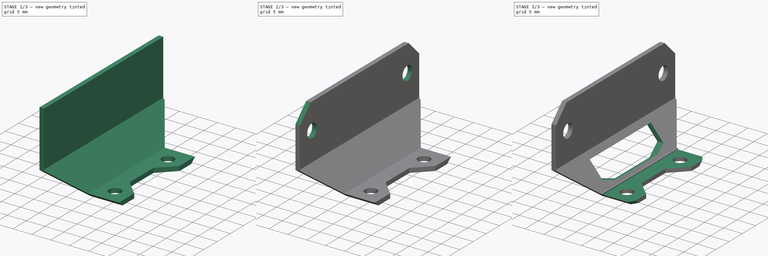
[diagram: build sequence overview — one tinted view per stage of 3, left to right]
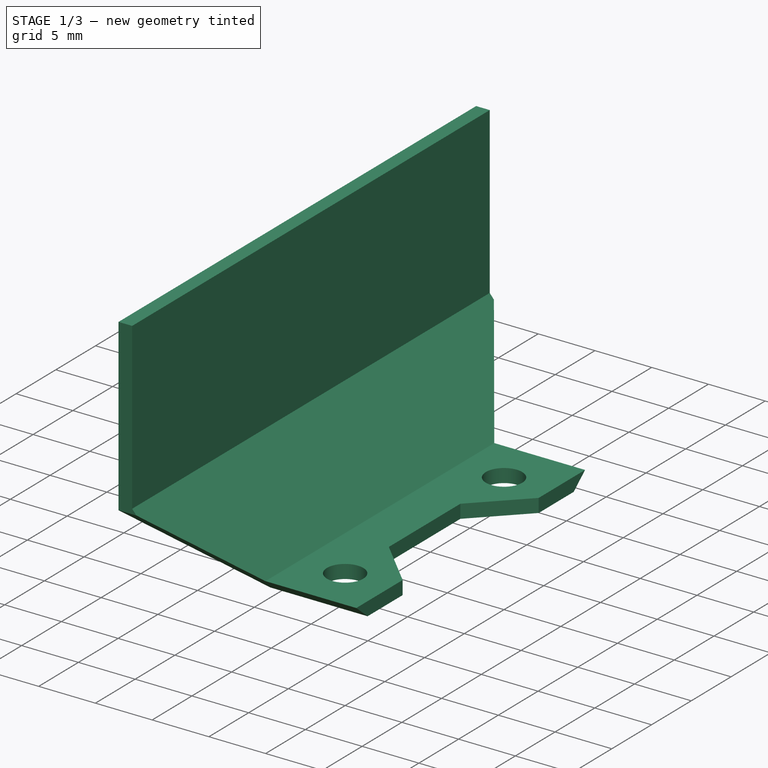
[diagram: stage 1 of 3 — iso view after this stage's code; geometry added in this stage tinted green]
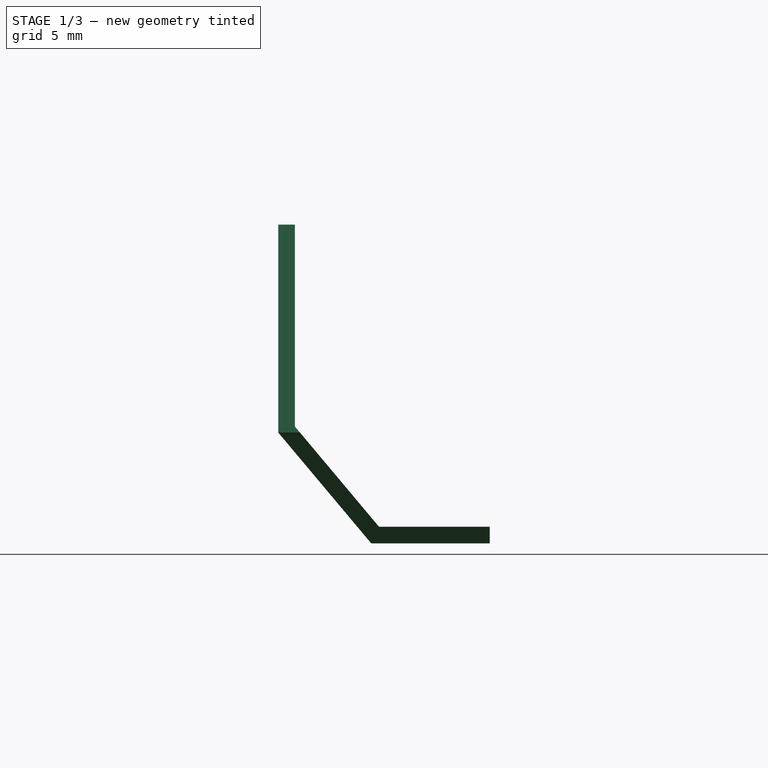
[diagram: stage 1 of 3 — front view after this stage's code; geometry added in this stage tinted green]
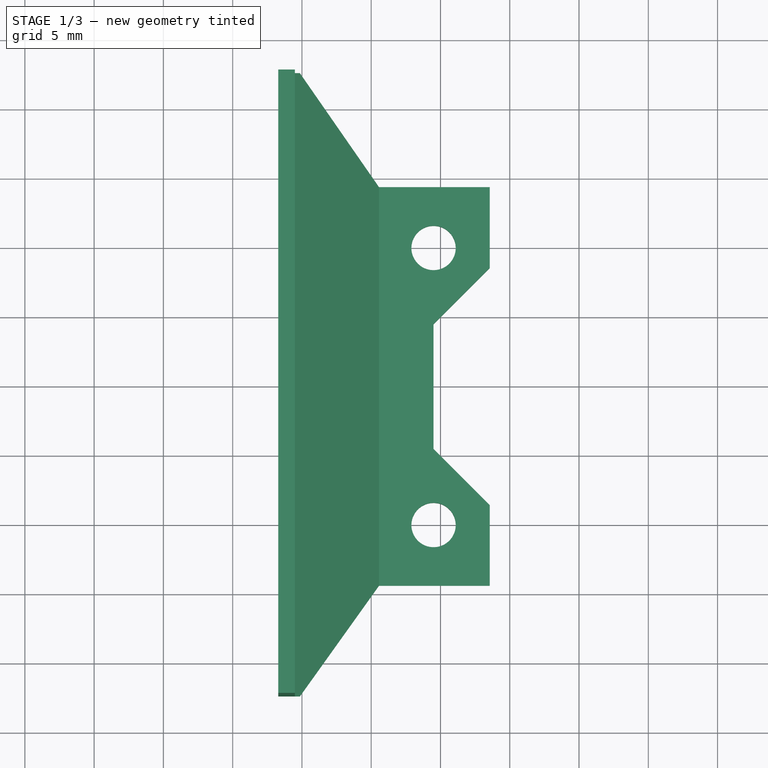
[diagram: stage 1 of 3 — top view after this stage's code; geometry added in this stage tinted green]
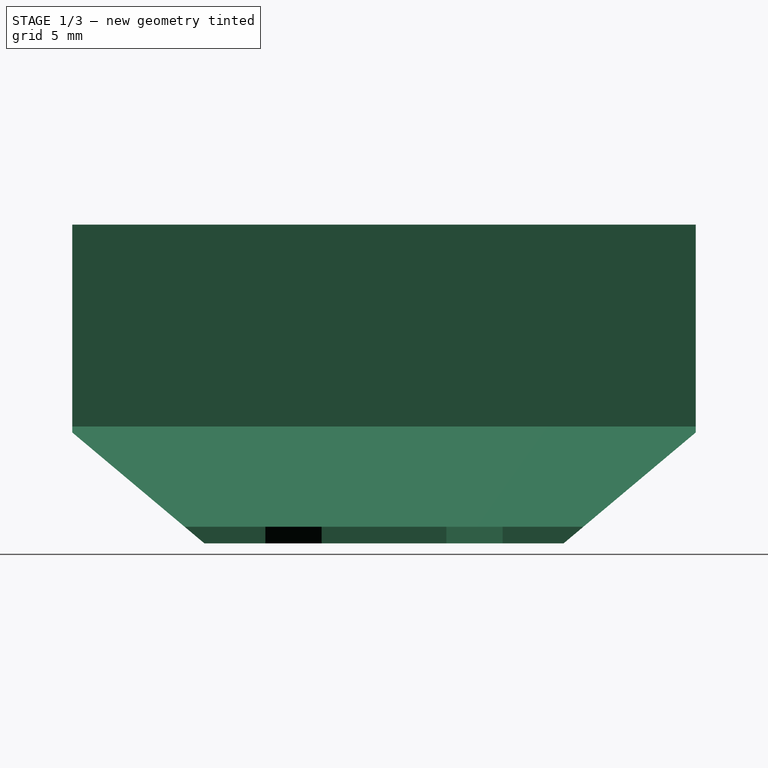
[diagram: stage 1 of 3 — right view after this stage's code; geometry added in this stage tinted green]
FCSTD DOCUMENT  (FreeCAD 0.18R4 (GitTag))
Label: soporte_SHARP_2
License: All rights reserved
LicenseURL: http://en.wikipedia.org/wiki/All_rights_reserved
objects: Sketcher::SketchObject×6, PartDesign::Pocket×5, PartDesign::Chamfer×2, PartDesign::Pad×1, PartDesign::Body×1
note: 21 computed .brp shape members not serialized (recipe doc carries the construction recipe); baked Part::Feature solids carry a one-line shape summary decoded from their .brp

FEATURE [Sketcher::SketchObject] Sketch
  MapMode = 5
  Placement = pos=(0,0,0) rot=(1,0,0;1.5708rad)
  Support = -> [XZ_Plane]
  sketch-geometry (9):
    g0: LineSegment StartX=0 StartY=0 StartZ=0 EndX=8.55957 EndY=0 EndZ=0
    g1: LineSegment StartX=8.55957 StartY=0 StartZ=0 EndX=8.55957 EndY=1.2 EndZ=0
    g2: LineSegment StartX=8.55957 StartY=1.2 StartZ=0 EndX=0.559569 EndY=1.2 EndZ=0
    g3: LineSegment StartX=0.559569 StartY=1.2 StartZ=0 EndX=-5.5128 EndY=8.43676 EndZ=0
    g4: LineSegment StartX=-5.5128 StartY=8.43676 StartZ=0 EndX=-5.5128 EndY=23 EndZ=0
    g5: LineSegment StartX=-5.5128 StartY=23 StartZ=0 EndX=-6.7128 EndY=23 EndZ=0
    g6: LineSegment StartX=-6.7128 StartY=23 StartZ=0 EndX=-6.7128 EndY=8 EndZ=0
    g7: LineSegment StartX=-6.7128 StartY=8 StartZ=0 EndX=9e-16 EndY=0 EndZ=0
    g8: LineSegment [constr] StartX=-1.61096 StartY=1.91987 StartZ=0 EndX=-0.69171 EndY=2.69122 EndZ=0
  constraints (26):
    c: Coincident(g0,g1)
    c: Coincident(g1,g2)
    c: Coincident(g2,g3)
    c: Coincident(g3,g4)
    c: Coincident(g4,g5)
    c: Coincident(g5,g6)
    c: Coincident(g6,g7)
    c: Coincident(g7,g0)
    c: Horizontal(g0)
    c: Horizontal(g2)
    c: Horizontal(g5)
    c: Vertical(g6)
    c: Vertical(g4)
    c: Vertical(g1)
    c: Parallel(g3,g7)
    c: Coincident(g0,g-1)
    c: Equal(g1,g5)
    c: Distance(g1) = 1.2
    c: Distance(g2) = 8
    c: PointOnObject(g8,g3)
    c: PointOnObject(g8,g7)
    c: Perpendicular(g7,g8)
    c: Distance(g8) = 1.2
    c: Angle(g-1,g7) = 2.26893
    c: Distance(g6) = 15
    c: DistanceY(g0,g6) = 8
FEATURE [PartDesign::Pad] Pad
  Length = 45
  Length2 = 100
  Midplane = true
  Placement = pos=(0,0,0) rot=(1,0,0;1.5708rad)
  Profile = -> Sketch
  Type = 0
FEATURE [Sketcher::SketchObject] Sketch001
  MapMode = 5
  Placement = pos=(-6.7128,0,0) rot=(0.707107,0,-0.707107;3.14159rad)
  Support = -> [Pad]
  sketch-geometry (8):
    g0: LineSegment StartX=-8 StartY=-22.5 StartZ=0 EndX=0 EndY=-12.966 EndZ=0
    g1: LineSegment StartX=0 StartY=-12.966 StartZ=0 EndX=0 EndY=-23.5 EndZ=0
    g2: LineSegment StartX=0 StartY=-23.5 StartZ=0 EndX=-8 EndY=-23.5 EndZ=0
    g3: LineSegment StartX=-8 StartY=-23.5 StartZ=0 EndX=-8 EndY=-22.5 EndZ=0
    g4: LineSegment StartX=-8 StartY=22.5 StartZ=0 EndX=0 EndY=12.966 EndZ=0
    g5: LineSegment StartX=0 StartY=12.966 StartZ=0 EndX=0 EndY=23.5 EndZ=0
    g6: LineSegment StartX=0 StartY=23.5 StartZ=0 EndX=-8 EndY=23.5 EndZ=0
    g7: LineSegment StartX=-8 StartY=23.5 StartZ=0 EndX=-8 EndY=22.5 EndZ=0
  constraints (22):
    c: Coincident(g0,g1)
    c: Coincident(g1,g2)
    c: Coincident(g2,g3)
    c: Coincident(g3,g0)
    c: Coincident(g4,g5)
    c: Coincident(g5,g6)
    c: Coincident(g6,g7)
    c: Coincident(g7,g4)
    c: Vertical(g5)
    c: Vertical(g1)
    c: Vertical(g3)
    c: Vertical(g7)
    c: Horizontal(g2)
    c: Horizontal(g6)
    c: Symmetric(g0,g4,g-1)
    c: Symmetric(g4,g0,g-1)
    c: Distance(g0,g4) = 45
    c: Angle(g4,g-2) = 2.44346
    c: DistanceX(g4,g-1) = 8
    c: Equal(g7,g3)
    c: Distance(g3) = 1
    c: PointOnObject(g0,g-2)
FEATURE [PartDesign::Pocket] Pocket
  BaseFeature = -> Pad
  Length = 20
  Length2 = 100
  Placement = pos=(0,0,0) rot=(1,0,0;1.5708rad)
  Profile = -> Sketch001
  Type = 0
FEATURE [Sketcher::SketchObject] Sketch002
  MapMode = 5
  Placement = pos=(0,3e-16,1.2) rot=(0,0,1;3.14159rad)
  Support = -> [Pocket]
  sketch-geometry (6):
    g0: Circle CenterX=-4.5 CenterY=10 CenterZ=0 NormalX=0 NormalY=0 NormalZ=1 AngleXU=0 Radius=1.6
    g1: Circle CenterX=-4.5 CenterY=-10 CenterZ=0 NormalX=0 NormalY=0 NormalZ=1 AngleXU=0 Radius=1.6
    g2: LineSegment StartX=-9.5 StartY=-9.5 StartZ=0 EndX=-4.5 EndY=-4.5 EndZ=0
    g3: LineSegment StartX=-4.5 StartY=-4.5 StartZ=0 EndX=-4.5 EndY=4.5 EndZ=0
    g4: LineSegment StartX=-4.5 StartY=4.5 StartZ=0 EndX=-9.5 EndY=9.5 EndZ=0
    g5: LineSegment StartX=-9.5 StartY=9.5 StartZ=0 EndX=-9.5 EndY=-9.5 EndZ=0
  constraints (15):
    c: Equal(g1,g0)
    c: Radius(g0) = 1.6
    c: Distance(g0,g1) = 20
    c: Symmetric(g1,g0,g-1)
    c: DistanceX(g1,g-1) = 4.5
    c: Coincident(g2,g3)
    c: Coincident(g3,g4)
    c: Coincident(g4,g5)
    c: Coincident(g5,g2)
    c: Symmetric(g2,g4,g-1)
    c: Symmetric(g2,g3,g-1)
    c: Angle(g4,g-1) = 0.785398
    c: Vertical(g2,g1)
    c: Distance(g3) = 9
    c: DistanceX(g2,g2) = 5
FEATURE [PartDesign::Pocket] Pocket001
  BaseFeature = -> Pocket
  Length = 5
  Length2 = 100
  Placement = pos=(0,0,0) rot=(1,0,0;1.5708rad)
  Profile = -> Sketch002
  Type = 0
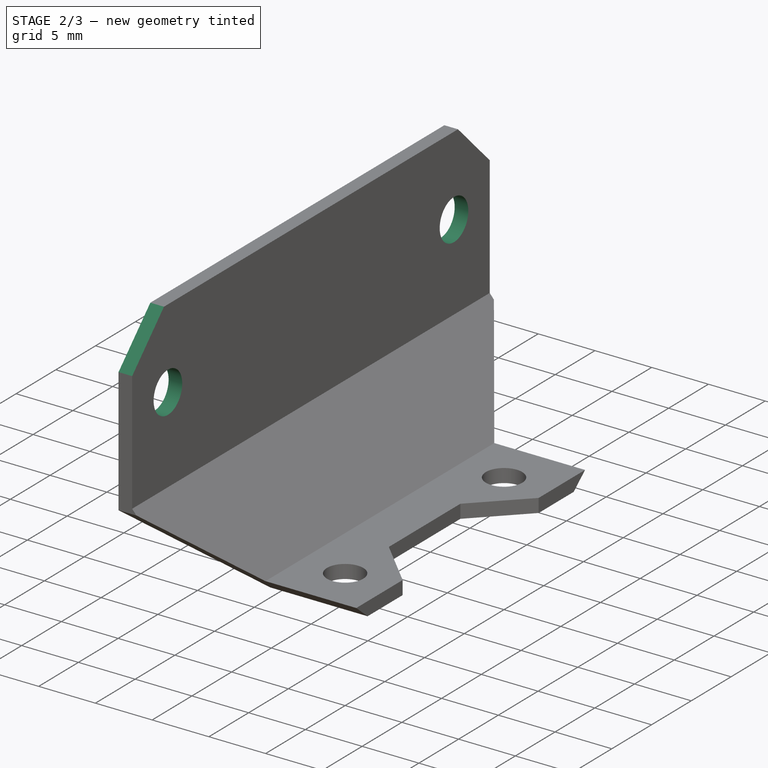
[diagram: stage 2 of 3 — iso view after this stage's code; geometry added in this stage tinted green]
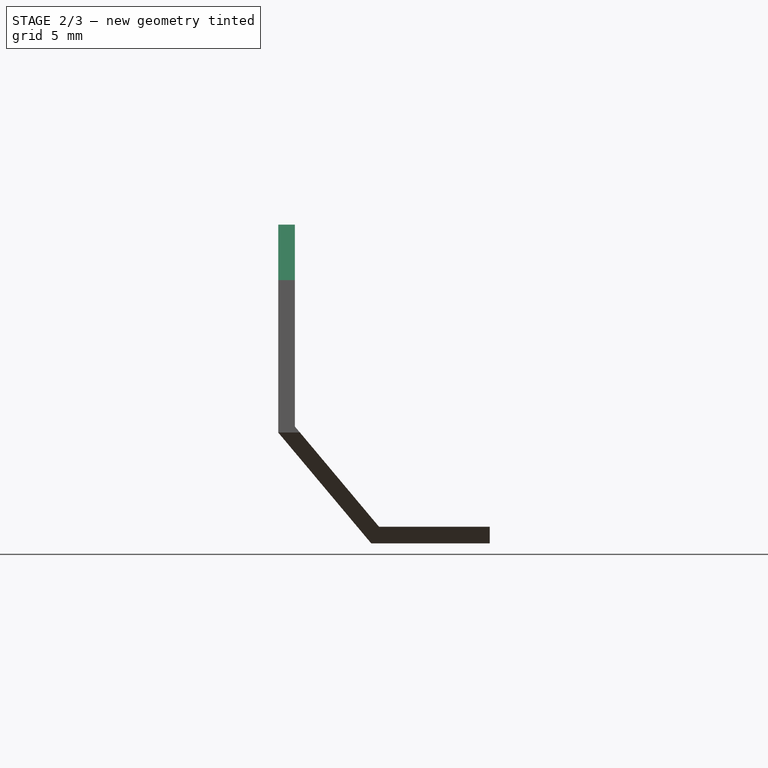
[diagram: stage 2 of 3 — front view after this stage's code; geometry added in this stage tinted green]
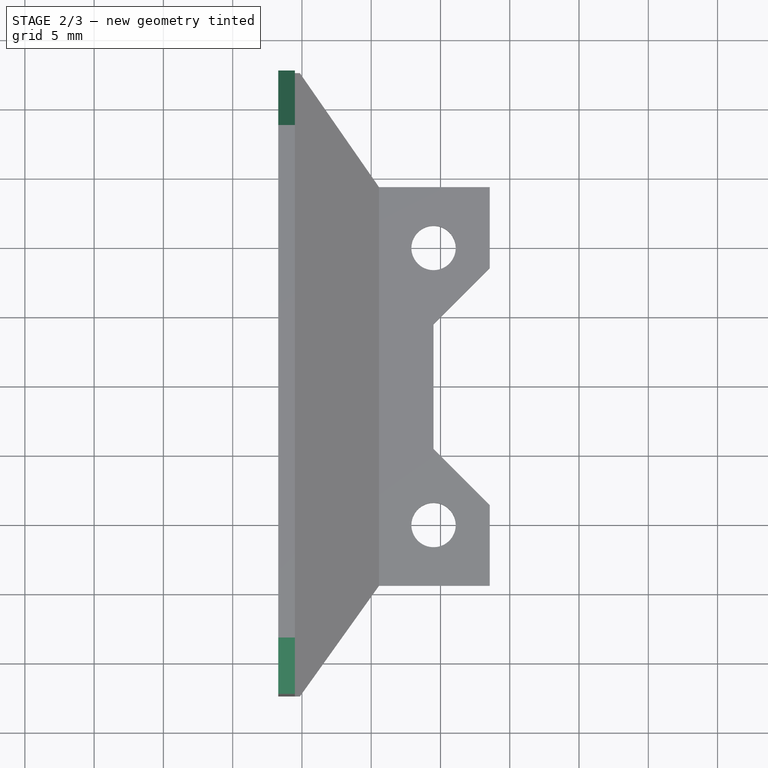
[diagram: stage 2 of 3 — top view after this stage's code; geometry added in this stage tinted green]
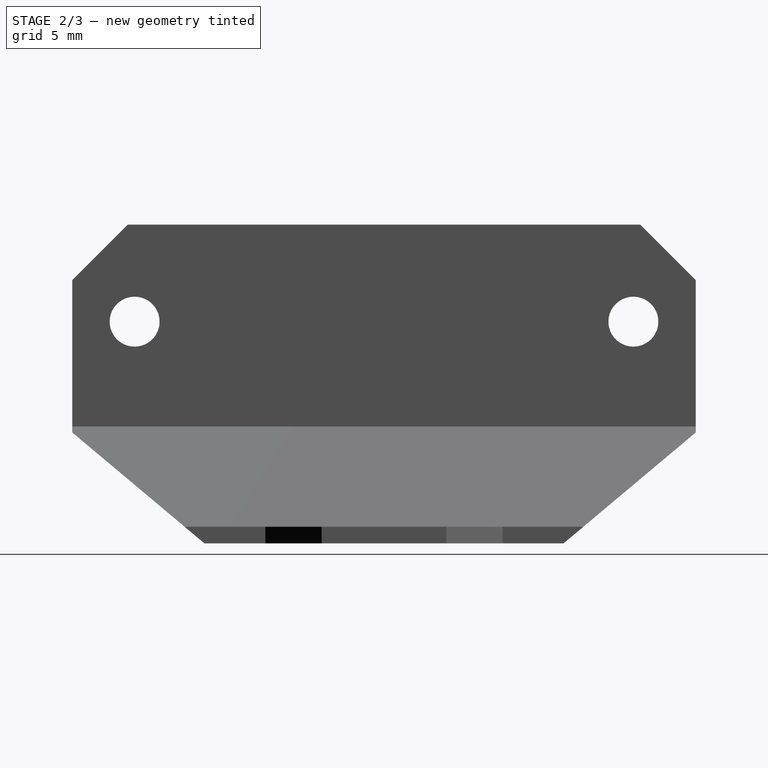
[diagram: stage 2 of 3 — right view after this stage's code; geometry added in this stage tinted green]
FEATURE [Sketcher::SketchObject] Sketch003
  MapMode = 5
  Placement = pos=(-6.7128,0,0) rot=(0.707107,0,-0.707107;3.14159rad)
  Support = -> [Pocket001]
  sketch-geometry (2):
    g0: Circle CenterX=-16 CenterY=18 CenterZ=0 NormalX=0 NormalY=0 NormalZ=1 AngleXU=0 Radius=1.8
    g1: Circle CenterX=-16 CenterY=-18 CenterZ=0 NormalX=0 NormalY=0 NormalZ=1 AngleXU=0 Radius=1.8
  constraints (5):
    c: Equal(g1,g0)
    c: Radius(g0) = 1.8
    c: Distance(g0,g1) = 36
    c: Symmetric(g1,g0,g-1)
    c: DistanceX(g0,g-1) = 16
FEATURE [PartDesign::Pocket] Pocket002
  BaseFeature = -> Pocket001
  Length = 5
  Length2 = 100
  Placement = pos=(0,0,0) rot=(1,0,0;1.5708rad)
  Profile = -> Sketch003
  Type = 0
FEATURE [PartDesign::Chamfer] Chamfer001
  Base = -> Pocket002 [Edge43,Edge40]
  BaseFeature = -> Pocket002
  Placement = pos=(0,0,0) rot=(1,0,0;1.5708rad)
  Size = 4
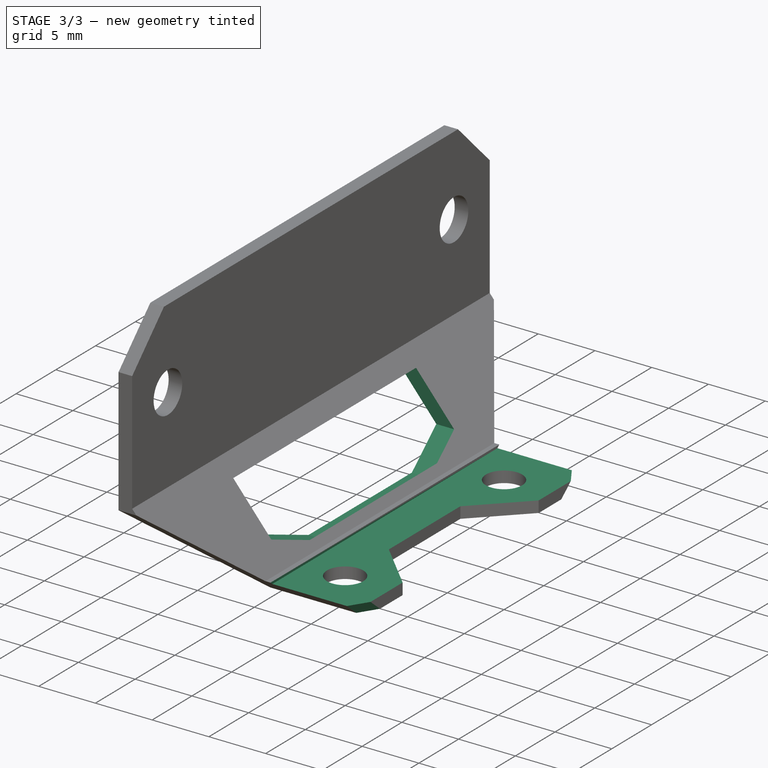
[diagram: stage 3 of 3 — iso view after this stage's code; geometry added in this stage tinted green]
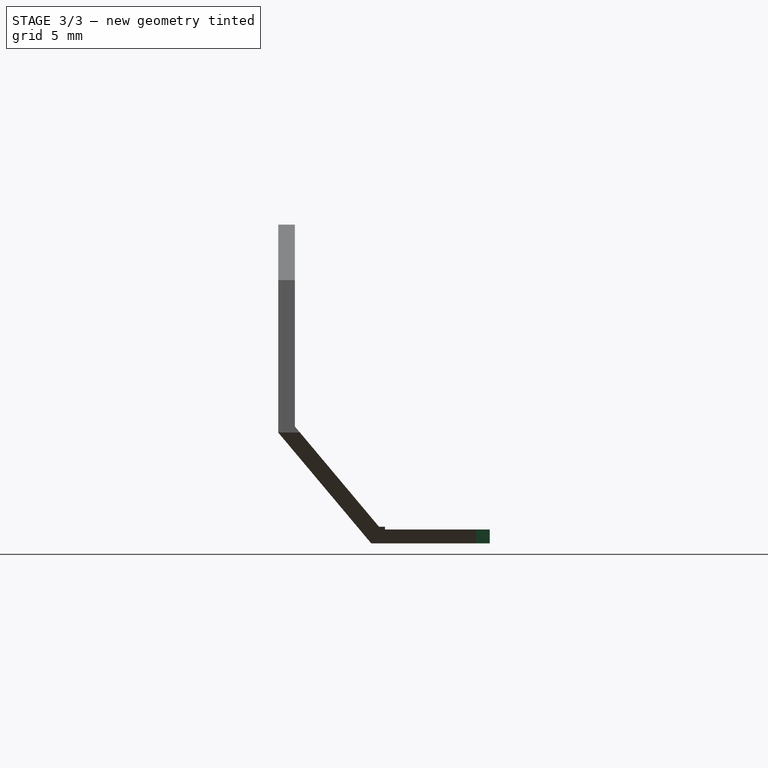
[diagram: stage 3 of 3 — front view after this stage's code; geometry added in this stage tinted green]
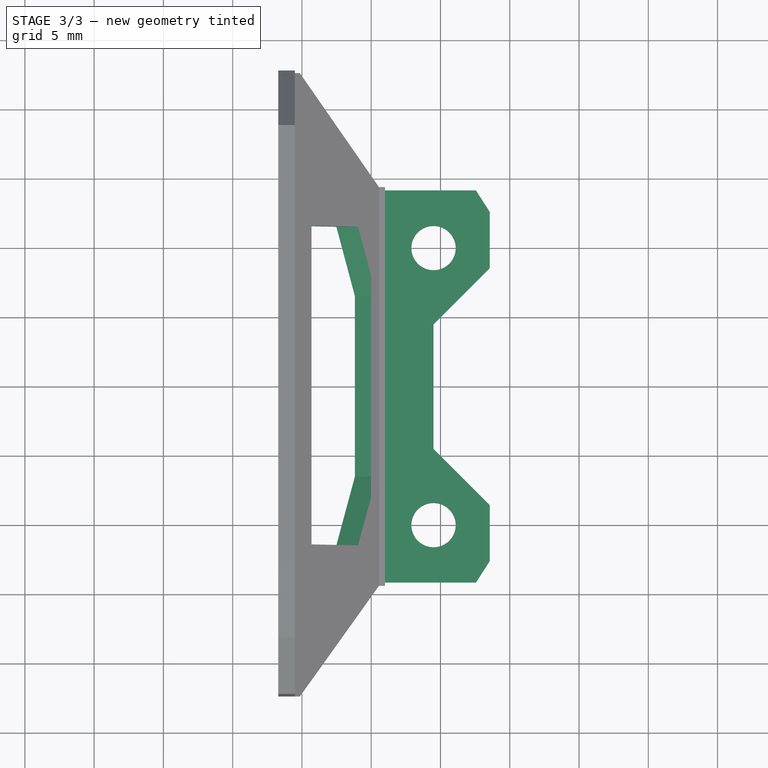
[diagram: stage 3 of 3 — top view after this stage's code; geometry added in this stage tinted green]
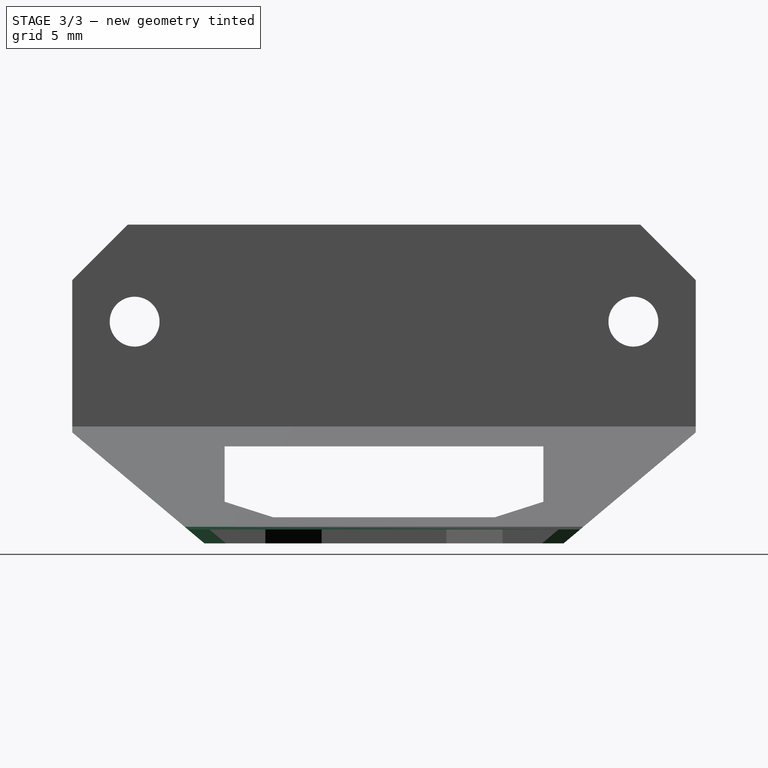
[diagram: stage 3 of 3 — right view after this stage's code; geometry added in this stage tinted green]
FEATURE [PartDesign::Chamfer] Chamfer
  Base = -> Chamfer001 [Edge53,Edge17]
  BaseFeature = -> Chamfer001
  Placement = pos=(0,0,0) rot=(1,0,0;1.5708rad)
  Size = 1
FEATURE [Sketcher::SketchObject] Sketch004
  MapMode = 5
  Placement = pos=(-5.5128,0,0) rot=(0.707107,0,0.707107;3.14159rad)
  Support = -> [Chamfer]
  sketch-geometry (6):
    g0: LineSegment StartX=1.4 StartY=6.5 StartZ=0 EndX=1.4 EndY=-6.5 EndZ=0
    g1: LineSegment StartX=1.4 StartY=-6.5 StartZ=0 EndX=3 EndY=-11.5 EndZ=0
    g2: LineSegment StartX=3 StartY=-11.5 StartZ=0 EndX=7 EndY=-11.5 EndZ=0
    g3: LineSegment StartX=7 StartY=-11.5 StartZ=0 EndX=7 EndY=11.5 EndZ=0
    g4: LineSegment StartX=7 StartY=11.5 StartZ=0 EndX=3 EndY=11.5 EndZ=0
    g5: LineSegment StartX=3 StartY=11.5 StartZ=0 EndX=1.4 EndY=6.5 EndZ=0
  constraints (17):
    c: Coincident(g0,g1)
    c: Coincident(g1,g2)
    c: Coincident(g2,g3)
    c: Coincident(g3,g4)
    c: Coincident(g4,g5)
    c: Coincident(g0,g5)
    c: Vertical(g0)
    c: Horizontal(g4)
    c: Horizontal(g2)
    c: Symmetric(g1,g4,g-1)
    c: Equal(g4,g2)
    c: Equal(g1,g5)
    c: Distance(g3) = 23
    c: Distance(g2) = 4
    c: DistanceX(g-1,g0) = 1.4
    c: Distance(g0) = 13
    c: DistanceX(g-1,g2) = 7
FEATURE [PartDesign::Pocket] Pocket003
  BaseFeature = -> Chamfer
  Length = 11
  Length2 = 100
  Midplane = true
  Placement = pos=(0,0,0) rot=(1,0,0;1.5708rad)
  Profile = -> Sketch004
  Type = 0
FEATURE [Sketcher::SketchObject] Sketch005
  ExternalGeometry = -> [Pocket003]
  MapMode = 5
  Placement = pos=(0,3e-16,1.2) rot=(0,0,1;3.14159rad)
  Support = -> [Pocket003]
  sketch-geometry (4):
    g0: LineSegment StartX=-9 StartY=-14.5 StartZ=0 EndX=-1 EndY=-14.5 EndZ=0
    g1: LineSegment StartX=-1 StartY=-14.5 StartZ=0 EndX=-1 EndY=14.5 EndZ=0
    g2: LineSegment StartX=-1 StartY=14.5 StartZ=0 EndX=-9 EndY=14.5 EndZ=0
    g3: LineSegment StartX=-9 StartY=14.5 StartZ=0 EndX=-9 EndY=-14.5 EndZ=0
  constraints (11):
    c: Coincident(g0,g1)
    c: Coincident(g1,g2)
    c: Coincident(g2,g3)
    c: Coincident(g3,g0)
    c: Horizontal(g0)
    c: Horizontal(g2)
    c: Vertical(g3)
    c: DistanceX(g-4,g0) = 3.5
    c: DistanceY(g0,g-4) = 4.5
    c: Symmetric(g0,g1,g-1)
    c: Distance(g2) = 8
FEATURE [PartDesign::Pocket] Pocket004
  BaseFeature = -> Pocket003
  Length = 0.2
  Length2 = 100
  Placement = pos=(0,0,0) rot=(1,0,0;1.5708rad)
  Profile = -> Sketch005
  Type = 0
FEATURE [PartDesign::Body] Body
  Group = -> [Sketch,Pad,Sketch001,Pocket,Sketch002,Pocket001,Sketch003,Pocket002,Chamfer001,Chamfer,Sketch004,Pocket003,Sketch005,Pocket004]
  Origin = -> Origin
  Tip = -> Pocket004
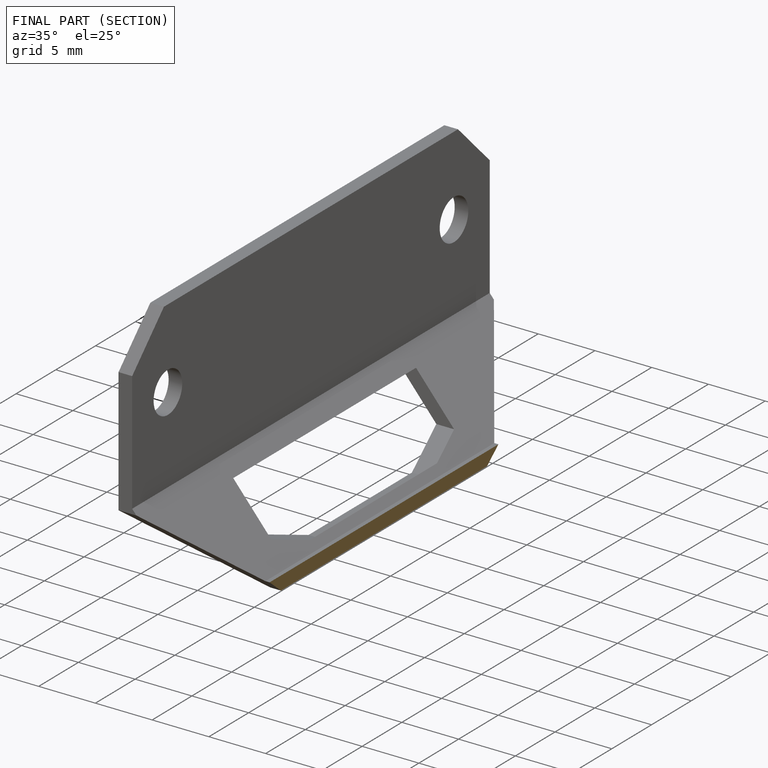
[diagram: finished part — half-section view (interior)]
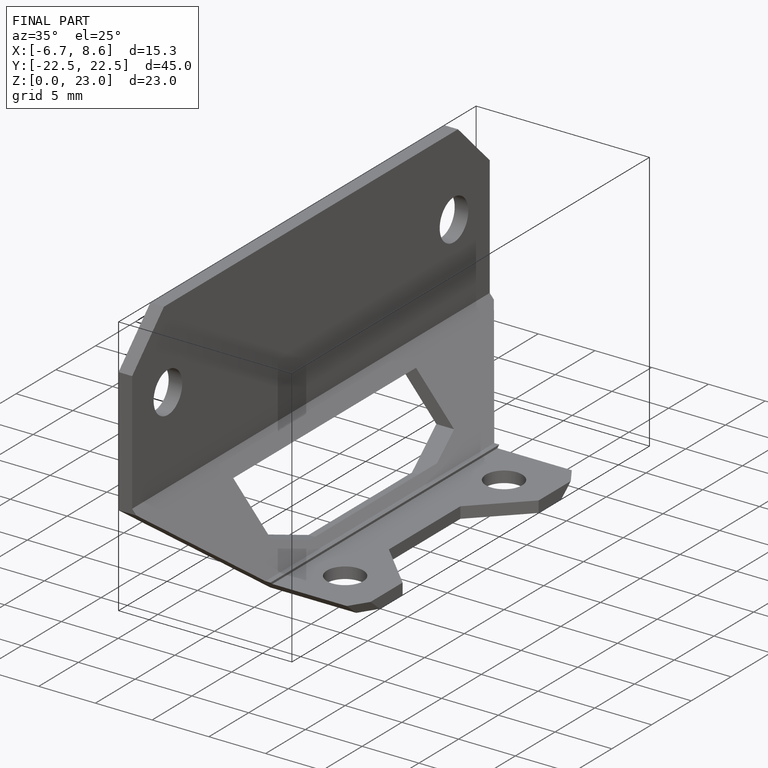
[diagram: finished part — iso view with bounding-box wireframe]
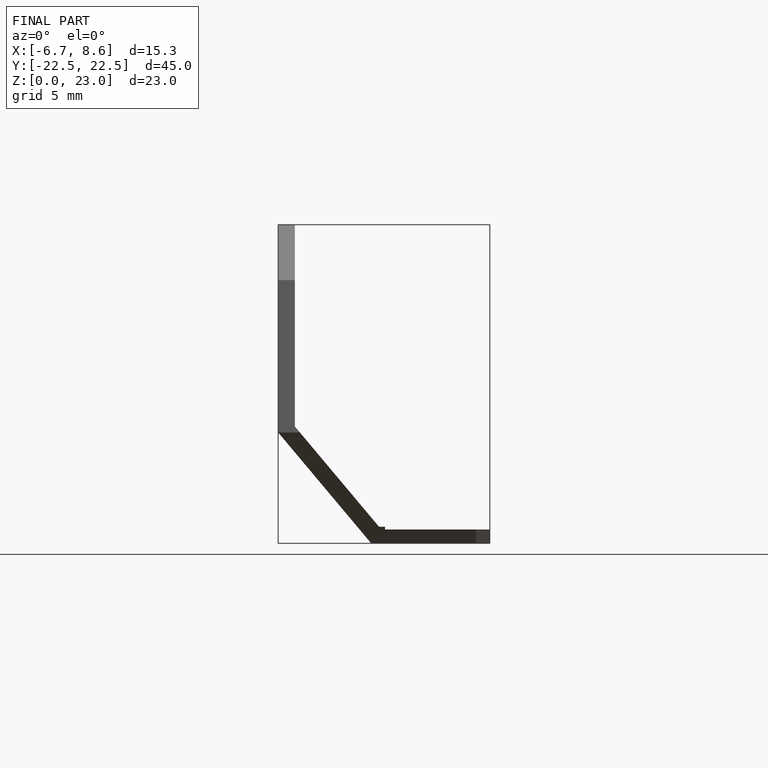
[diagram: finished part — front view with bounding-box wireframe]
